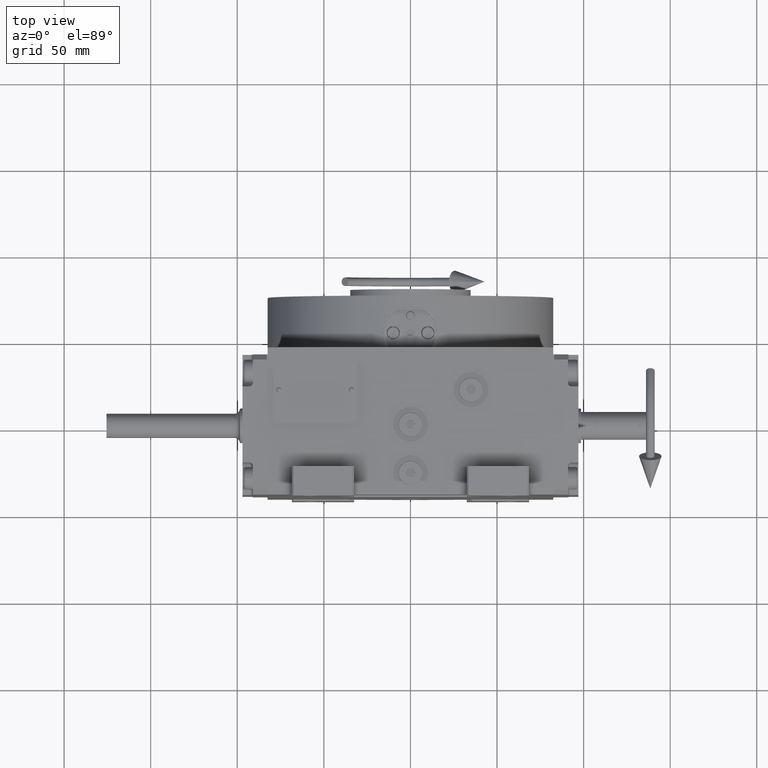
[diagram: clean part render]
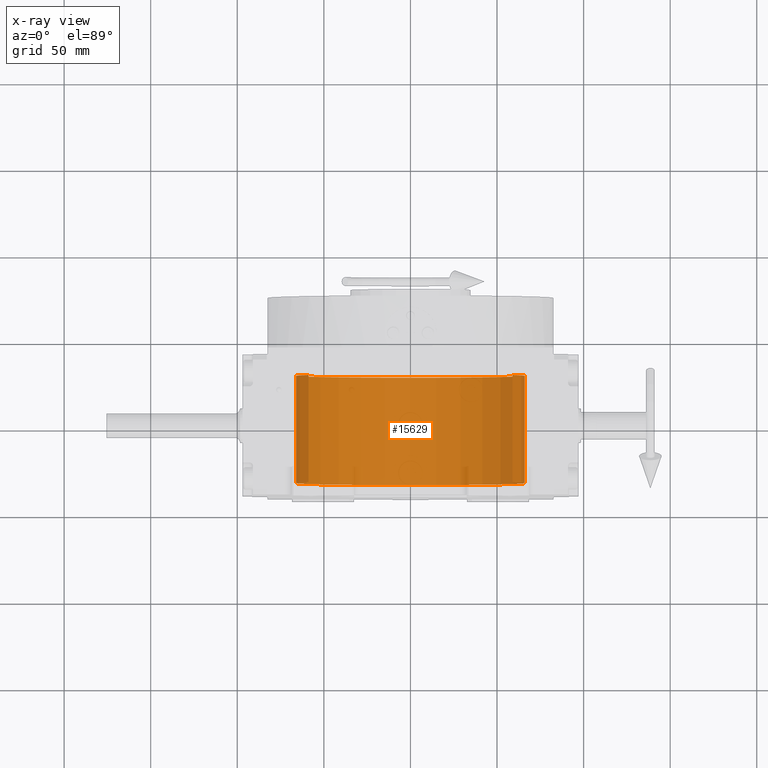
[diagram: x-ray — body ghosted, one internal face saturated and labeled with its STEP entity id]
A machine part, top view, then the same camera in x-ray: the body is ghosted and one INTERNAL B-rep face — a face not visible from any outside direction — is saturated and labeled: STEP entity #15629.
In plain terms, the highlighted cylindrical surface (partial cylindrical patch) has radius 66 mm, axis along (0, 1, 0).
Its self-contained STEP definition (entity closure, byte-faithful):
#1316 = DIRECTION ( 'NONE',  ( -0.000000000000000000, 1.000000000000000000, -0.000000000000000000 ) ) ;
#1637 = DIRECTION ( 'NONE',  ( 0.000000000000000000, 0.000000000000000000, 1.000000000000000000 ) ) ;
#2582 = CARTESIAN_POINT ( 'NONE',  ( 0.000000000000000000, -31.99999999999998579, 0.000000000000000000 ) ) ;
#3222 = CARTESIAN_POINT ( 'NONE',  ( -58.78775382679628336, 98.15000000000000568, 30.00000000000000000 ) ) ;
#9449 = DIRECTION ( 'NONE',  ( -0.000000000000000000, 1.000000000000000000, -0.000000000000000000 ) ) ;
#10013 = VERTEX_POINT ( 'NONE', #60230 ) ;
#10314 = CIRCLE ( 'NONE', #33992, 66.00000000000000000 ) ;
#10501 = CARTESIAN_POINT ( 'NONE',  ( -58.78775382679628336, 30.00000000000001421, 30.00000000000000000 ) ) ;
#10765 = ORIENTED_EDGE ( 'NONE', *, *, #17104, .F. ) ;
#13006 = CIRCLE ( 'NONE', #30578, 66.00000000000000000 ) ;
#13876 = DIRECTION ( 'NONE',  ( 0.000000000000000000, 0.000000000000000000, 1.000000000000000000 ) ) ;
#15629 = ADVANCED_FACE ( 'NONE', ( #33239 ), #42626, .F. ) ;
#17104 = EDGE_CURVE ( 'NONE', #37176, #10013, #13006, .T. ) ;
#17234 = ORIENTED_EDGE ( 'NONE', *, *, #18978, .T. ) ;
#18978 = EDGE_CURVE ( 'NONE', #29879, #47498, #10314, .T. ) ;
#28423 = DIRECTION ( 'NONE',  ( -0.000000000000000000, 1.000000000000000000, -0.000000000000000000 ) ) ;
#29879 = VERTEX_POINT ( 'NONE', #52010 ) ;
#30578 = AXIS2_PLACEMENT_3D ( 'NONE', #2582, #1316, #1637 ) ;
#32084 = EDGE_CURVE ( 'NONE', #37176, #29879, #49133, .T. ) ;
#33239 = FACE_OUTER_BOUND ( 'NONE', #61527, .T. ) ;
#33992 = AXIS2_PLACEMENT_3D ( 'NONE', #52351, #51081, #46564 ) ;
#35839 = VECTOR ( 'NONE', #9449, 1000.000000000000000 ) ;
#35928 = ORIENTED_EDGE ( 'NONE', *, *, #41545, .T. ) ;
#37176 = VERTEX_POINT ( 'NONE', #40949 ) ;
#38758 = ORIENTED_EDGE ( 'NONE', *, *, #32084, .T. ) ;
#40949 = CARTESIAN_POINT ( 'NONE',  ( 58.78775382679628336, -31.99999999999998579, 30.00000000000000000 ) ) ;
#41545 = EDGE_CURVE ( 'NONE', #47498, #10013, #52231, .T. ) ;
#42626 = CYLINDRICAL_SURFACE ( 'NONE', #56143, 66.00000000000000000 ) ;
#46564 = DIRECTION ( 'NONE',  ( 0.000000000000000000, 0.000000000000000000, 1.000000000000000000 ) ) ;
#47122 = CARTESIAN_POINT ( 'NONE',  ( 0.000000000000000000, 98.15000000000000568, 0.000000000000000000 ) ) ;
#47498 = VERTEX_POINT ( 'NONE', #10501 ) ;
#49133 = LINE ( 'NONE', #62969, #35839 ) ;
#49897 = VECTOR ( 'NONE', #57688, 1000.000000000000000 ) ;
#51081 = DIRECTION ( 'NONE',  ( -0.000000000000000000, 1.000000000000000000, -0.000000000000000000 ) ) ;
#52010 = CARTESIAN_POINT ( 'NONE',  ( 58.78775382679628336, 30.00000000000001421, 30.00000000000000000 ) ) ;
#52231 = LINE ( 'NONE', #3222, #49897 ) ;
#52351 = CARTESIAN_POINT ( 'NONE',  ( 0.000000000000000000, 30.00000000000001421, 0.000000000000000000 ) ) ;
#56143 = AXIS2_PLACEMENT_3D ( 'NONE', #47122, #28423, #13876 ) ;
#57688 = DIRECTION ( 'NONE',  ( 0.000000000000000000, -1.000000000000000000, 0.000000000000000000 ) ) ;
#60230 = CARTESIAN_POINT ( 'NONE',  ( -58.78775382679628336, -31.99999999999998579, 30.00000000000000000 ) ) ;
#61527 = EDGE_LOOP ( 'NONE', ( #35928, #10765, #38758, #17234 ) ) ;
#62969 = CARTESIAN_POINT ( 'NONE',  ( 58.78775382679628336, 98.15000000000000568, 30.00000000000000000 ) ) ;